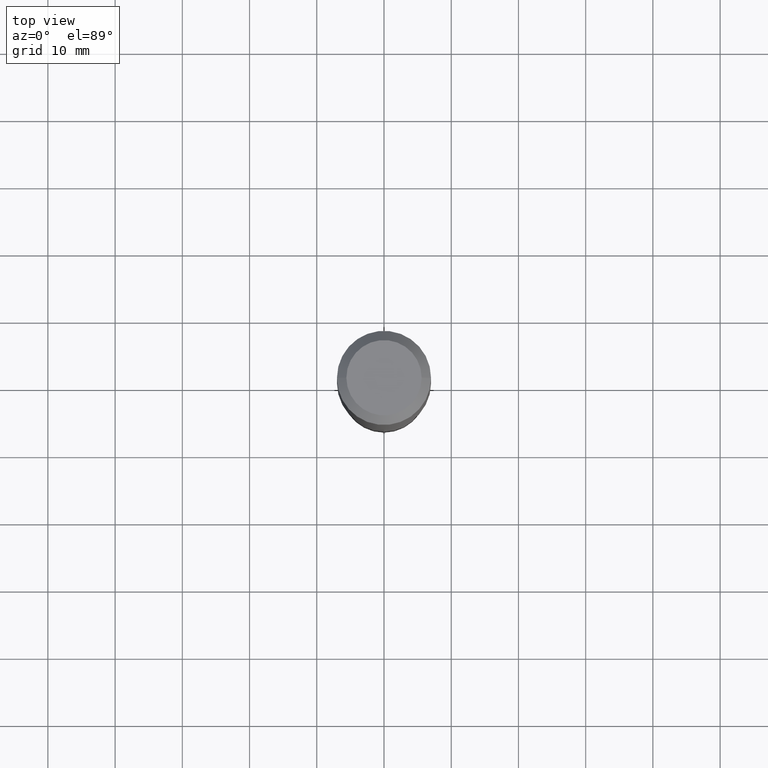
[diagram: clean part render]
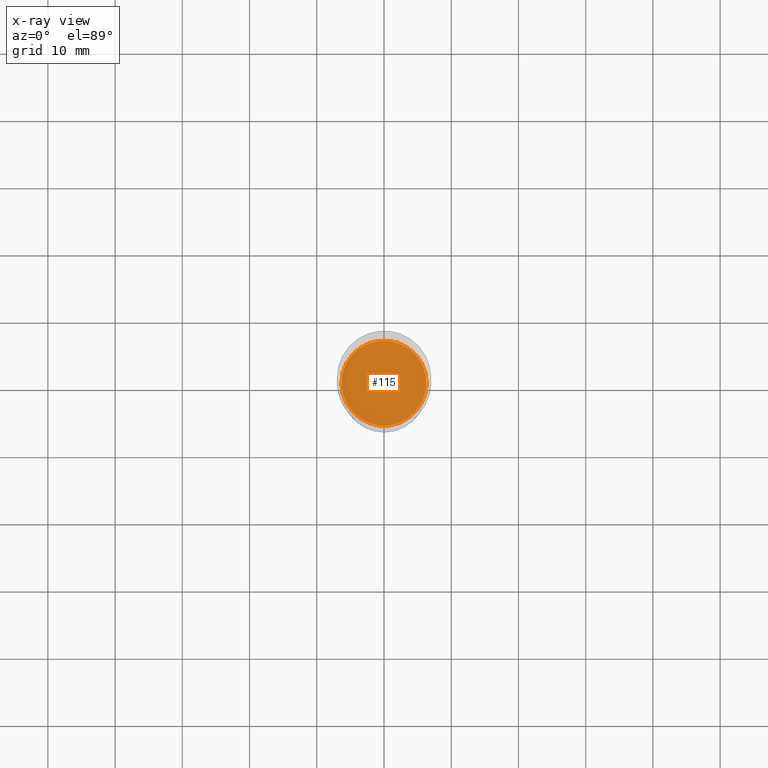
[diagram: x-ray — body ghosted, one internal face saturated and labeled with its STEP entity id]
A machine part, top view, then the same camera in x-ray: the body is ghosted and one INTERNAL B-rep face — a face not visible from any outside direction — is saturated and labeled: STEP entity #115.
In plain terms, the highlighted planar face has unit normal (-0, 0, 1).
Its self-contained STEP definition (entity closure, byte-faithful):
#9 = EDGE_CURVE ( 'NONE', #241, #478, #135, .T. ) ;
#17 = AXIS2_PLACEMENT_3D ( 'NONE', #377, #461, #45 ) ;
#38 = FACE_OUTER_BOUND ( 'NONE', #92, .T. ) ;
#45 = DIRECTION ( 'NONE',  ( 1.000000000000000000, -6.982962677686265922E-15, 4.876176775795935793E-29 ) ) ;
#74 = AXIS2_PLACEMENT_3D ( 'NONE', #158, #127, #459 ) ;
#92 = EDGE_LOOP ( 'NONE', ( #317, #188 ) ) ;
#108 = CARTESIAN_POINT ( 'NONE',  ( 4.525095478964977394E-29, -6.460637069395357576E-15, -1.850400000000000267 ) ) ;
#113 = CIRCLE ( 'NONE', #74, 0.2494999999999999996 ) ;
#115 = ADVANCED_FACE ( 'NONE', ( #38 ), #301, .F. ) ;
#123 = AXIS2_PLACEMENT_3D ( 'NONE', #108, #489, #405 ) ;
#127 = DIRECTION ( 'NONE',  ( -2.445468806185136597E-29, 3.491481338843145583E-15, 1.000000000000000000 ) ) ;
#135 = CIRCLE ( 'NONE', #123, 0.2494999999999999996 ) ;
#158 = CARTESIAN_POINT ( 'NONE',  ( 4.525095478964977394E-29, -6.460637069395357576E-15, -1.850400000000000267 ) ) ;
#188 = ORIENTED_EDGE ( 'NONE', *, *, #9, .F. ) ;
#221 = CARTESIAN_POINT ( 'NONE',  ( -0.2494999999999999996, -4.685183716499796809E-15, -1.850400000000000267 ) ) ;
#241 = VERTEX_POINT ( 'NONE', #221 ) ;
#251 = EDGE_CURVE ( 'NONE', #478, #241, #113, .T. ) ;
#301 = PLANE ( 'NONE',  #17 ) ;
#317 = ORIENTED_EDGE ( 'NONE', *, *, #251, .F. ) ;
#350 = CARTESIAN_POINT ( 'NONE',  ( 0.2494999999999999996, -8.202886257478081246E-15, -1.850400000000000267 ) ) ;
#377 = CARTESIAN_POINT ( 'NONE',  ( 7.354671176892129534E-29, -2.408523620516517008E-15, -1.850400000000000489 ) ) ;
#405 = DIRECTION ( 'NONE',  ( 1.000000000000000000, -6.982962677686269077E-15, 0.000000000000000000 ) ) ;
#459 = DIRECTION ( 'NONE',  ( 1.000000000000000000, -6.982962677686269077E-15, 0.000000000000000000 ) ) ;
#461 = DIRECTION ( 'NONE',  ( -2.438088387897960049E-29, 3.491481338843145188E-15, 1.000000000000000000 ) ) ;
#478 = VERTEX_POINT ( 'NONE', #350 ) ;
#489 = DIRECTION ( 'NONE',  ( -2.445468806185136597E-29, 3.491481338843145583E-15, 1.000000000000000000 ) ) ;